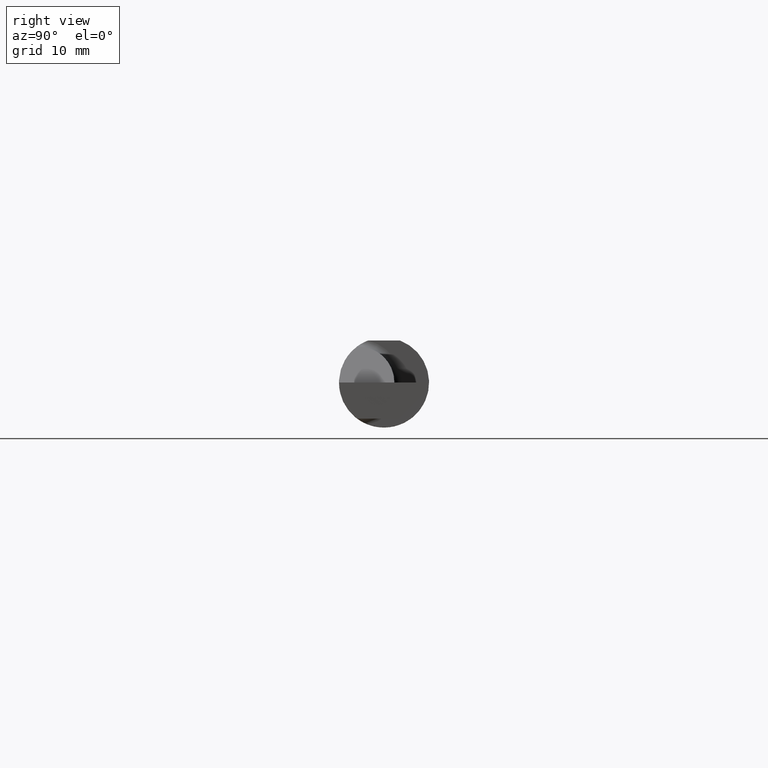
[diagram: clean part render]
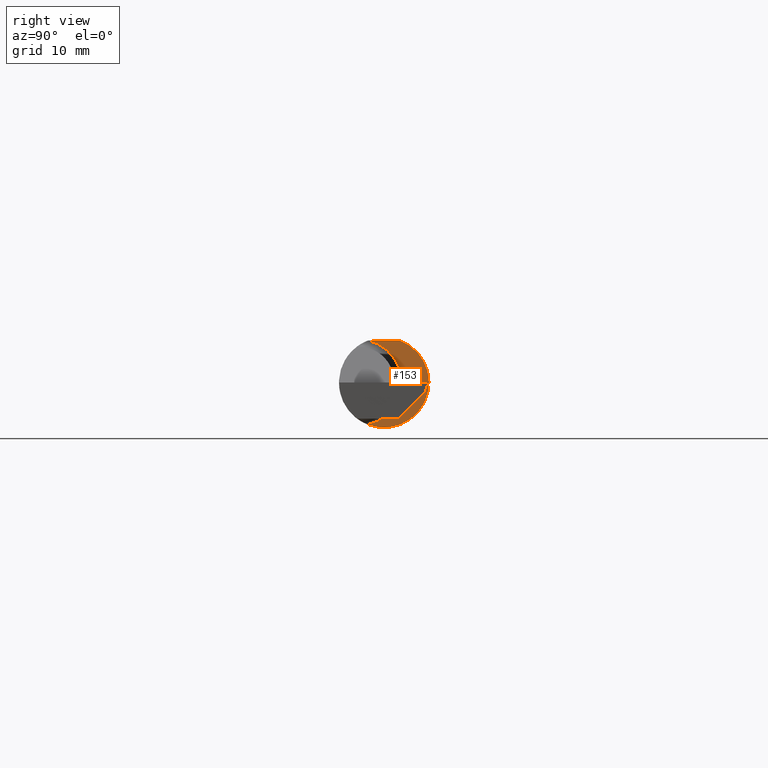
[diagram: same view with one face highlighted and labeled with its STEP entity id]
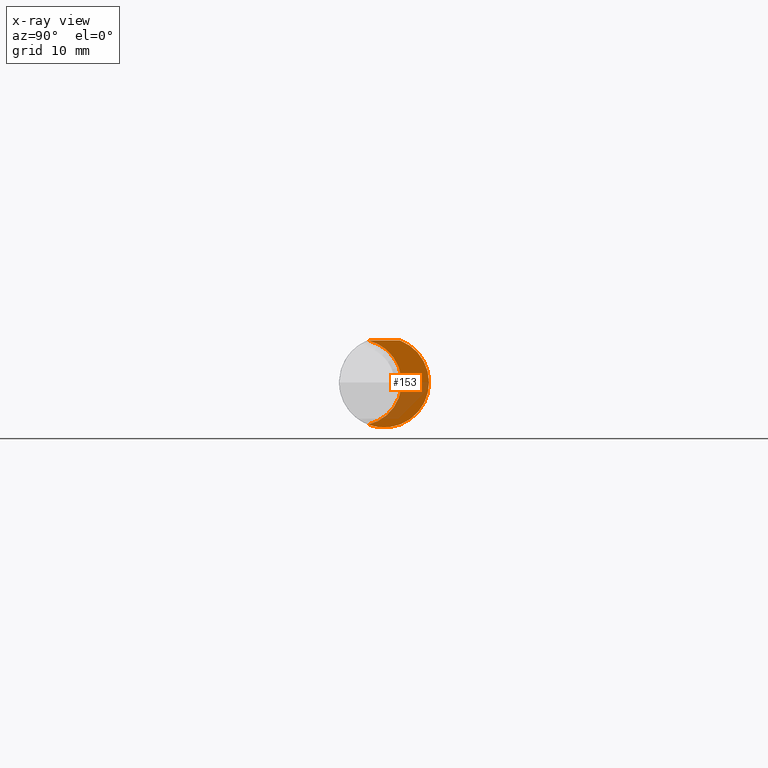
[diagram: x-ray of the same camera — body ghosted, the highlighted face saturated]
A machine part, right view. The second image highlights one B-rep face of the part: STEP entity #153.
The next image is the same camera in x-ray: the body ghosted, the highlighted face saturated — about 30% of this face is hidden behind the body in this view.
In plain terms, the highlighted planar face has unit normal (1, 0, 0).
Its self-contained STEP definition (entity closure, byte-faithful):
#46 = CIRCLE ( 'NONE', #341, 0.1499999999999999944 ) ;
#97 = VECTOR ( 'NONE', #106, 39.37007874015748143 ) ;
#106 = DIRECTION ( 'NONE',  ( -0.000000000000000000, 1.000000000000000000, 0.000000000000000000 ) ) ;
#120 = ORIENTED_EDGE ( 'NONE', *, *, #1040, .T. ) ;
#127 = CARTESIAN_POINT ( 'NONE',  ( 1.699999999999999956, 0.05497272050753900657, 0.1460999999999999799 ) ) ;
#153 = ADVANCED_FACE ( 'NONE', ( #539 ), #674, .T. ) ;
#199 = LINE ( 'NONE', #782, #97 ) ;
#259 = DIRECTION ( 'NONE',  ( 0.000000000000000000, 0.000000000000000000, -1.000000000000000000 ) ) ;
#267 = VERTEX_POINT ( 'NONE', #127 ) ;
#324 = DIRECTION ( 'NONE',  ( 0.000000000000000000, 0.000000000000000000, -1.000000000000000000 ) ) ;
#329 = AXIS2_PLACEMENT_3D ( 'NONE', #436, #354, #668 ) ;
#341 = AXIS2_PLACEMENT_3D ( 'NONE', #489, #677, #408 ) ;
#354 = DIRECTION ( 'NONE',  ( 1.000000000000000000, 0.000000000000000000, 0.000000000000000000 ) ) ;
#407 = DIRECTION ( 'NONE',  ( 1.000000000000000000, 0.000000000000000000, 0.000000000000000000 ) ) ;
#408 = DIRECTION ( 'NONE',  ( 0.000000000000000000, 0.000000000000000000, 1.000000000000000000 ) ) ;
#426 = EDGE_CURVE ( 'NONE', #723, #980, #46, .T. ) ;
#436 = CARTESIAN_POINT ( 'NONE',  ( 1.699999999999999956, 0.2358999999999999708, 0.000000000000000000 ) ) ;
#457 = CIRCLE ( 'NONE', #1081, 0.1560999999999999888 ) ;
#465 = CARTESIAN_POINT ( 'NONE',  ( 1.699999999999999734, -0.05502817059483720158, -0.1460791239054557156 ) ) ;
#489 = CARTESIAN_POINT ( 'NONE',  ( 1.699999999999999734, -0.08909999999999998477, 0.000000000000000000 ) ) ;
#536 = CARTESIAN_POINT ( 'NONE',  ( 1.699999999999999734, -0.05502817059483720158, 0.1460791239054557156 ) ) ;
#539 = FACE_OUTER_BOUND ( 'NONE', #948, .T. ) ;
#565 = ORIENTED_EDGE ( 'NONE', *, *, #426, .T. ) ;
#645 = EDGE_CURVE ( 'NONE', #736, #267, #199, .T. ) ;
#649 = CARTESIAN_POINT ( 'NONE',  ( 1.699999999999999956, 0.000000000000000000, 0.000000000000000000 ) ) ;
#668 = DIRECTION ( 'NONE',  ( 0.000000000000000000, 0.000000000000000000, -1.000000000000000000 ) ) ;
#674 = PLANE ( 'NONE',  #329 ) ;
#677 = DIRECTION ( 'NONE',  ( -1.000000000000000000, -0.000000000000000000, -0.000000000000000000 ) ) ;
#678 = CIRCLE ( 'NONE', #833, 0.1560999999999999888 ) ;
#687 = ORIENTED_EDGE ( 'NONE', *, *, #836, .T. ) ;
#723 = VERTEX_POINT ( 'NONE', #536 ) ;
#736 = VERTEX_POINT ( 'NONE', #1049 ) ;
#782 = CARTESIAN_POINT ( 'NONE',  ( 1.699999999999999956, -0.1561000000000000165, 0.1460999999999999799 ) ) ;
#833 = AXIS2_PLACEMENT_3D ( 'NONE', #1072, #407, #324 ) ;
#836 = EDGE_CURVE ( 'NONE', #980, #267, #678, .T. ) ;
#869 = ORIENTED_EDGE ( 'NONE', *, *, #645, .F. ) ;
#911 = DIRECTION ( 'NONE',  ( 1.000000000000000000, 0.000000000000000000, 0.000000000000000000 ) ) ;
#948 = EDGE_LOOP ( 'NONE', ( #687, #869, #120, #565 ) ) ;
#980 = VERTEX_POINT ( 'NONE', #465 ) ;
#1040 = EDGE_CURVE ( 'NONE', #736, #723, #457, .T. ) ;
#1049 = CARTESIAN_POINT ( 'NONE',  ( 1.699999999999999956, -0.05497272050753899270, 0.1460999999999999799 ) ) ;
#1072 = CARTESIAN_POINT ( 'NONE',  ( 1.699999999999999956, 0.000000000000000000, 0.000000000000000000 ) ) ;
#1081 = AXIS2_PLACEMENT_3D ( 'NONE', #649, #911, #259 ) ;